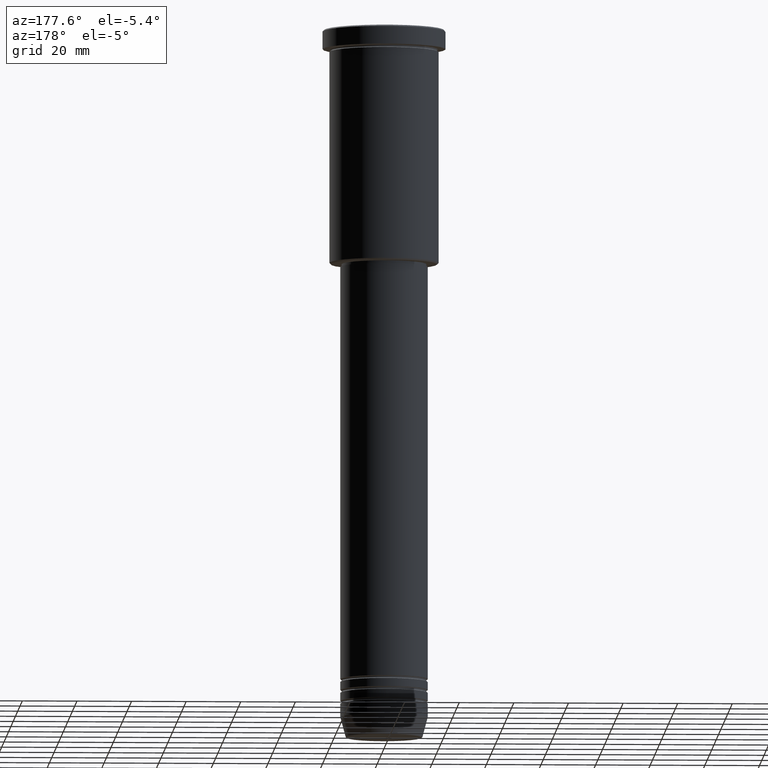
[diagram: clean part render]
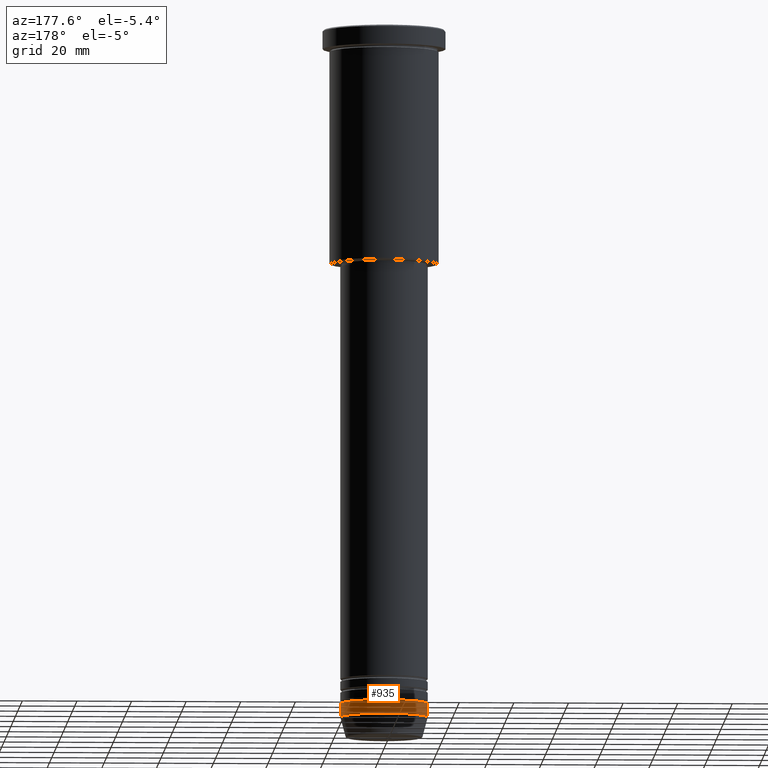
[diagram: same view with one face highlighted and labeled with its STEP entity id]
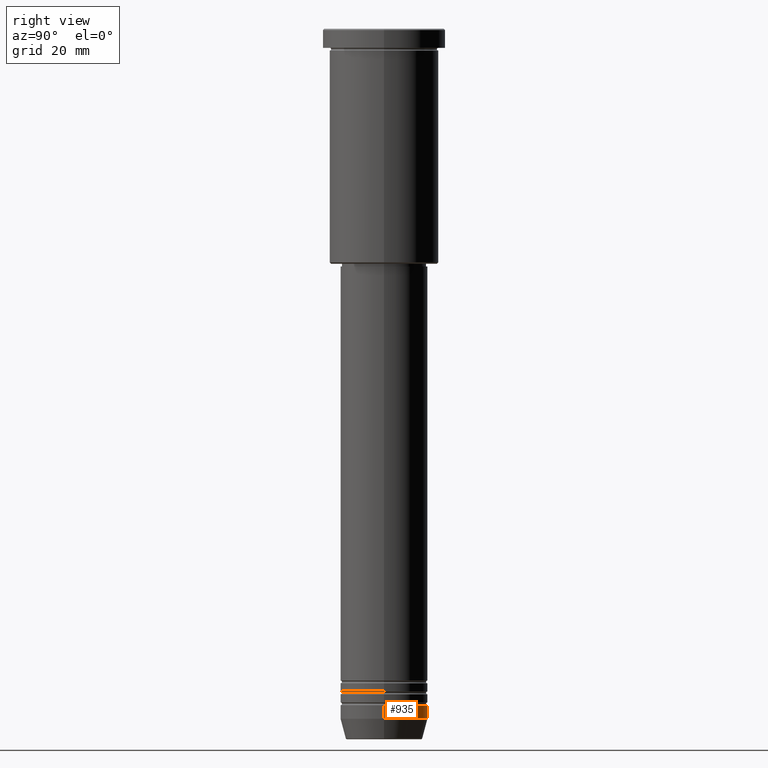
[diagram: same view with one face highlighted and labeled with its STEP entity id]
A machine part, auxiliary view. The second image highlights one B-rep face of the part: STEP entity #935.
A second angle (right view) of the same face is appended — the face is thin or edge-on in the first view.
In plain terms, the highlighted cylindrical surface (partial cylindrical patch) has radius 16 mm, axis along (-0, -0, 1).
Its self-contained STEP definition (entity closure, byte-faithful):
#8 = EDGE_CURVE ( 'NONE', #1112, #890, #61, .T. ) ;
#36 = DIRECTION ( 'NONE',  ( -0.000000000000000000, -0.000000000000000000, 1.000000000000000000 ) ) ;
#61 = LINE ( 'NONE', #779, #893 ) ;
#68 = CIRCLE ( 'NONE', #817, 16.00000000000000000 ) ;
#71 = AXIS2_PLACEMENT_3D ( 'NONE', #388, #936, #116 ) ;
#116 = DIRECTION ( 'NONE',  ( 1.000000000000000000, 0.000000000000000000, 0.000000000000000000 ) ) ;
#153 = CARTESIAN_POINT ( 'NONE',  ( 16.00000000000000000, 0.000000000000000000, -252.5000000000000000 ) ) ;
#241 = VECTOR ( 'NONE', #423, 1000.000000000000000 ) ;
#246 = EDGE_CURVE ( 'NONE', #1150, #806, #494, .T. ) ;
#250 = DIRECTION ( 'NONE',  ( 1.000000000000000000, 0.000000000000000000, 0.000000000000000000 ) ) ;
#334 = CARTESIAN_POINT ( 'NONE',  ( -16.00000000000000000, 1.959434878635765131E-15, 0.000000000000000000 ) ) ;
#388 = CARTESIAN_POINT ( 'NONE',  ( 0.000000000000000000, 0.000000000000000000, 0.000000000000000000 ) ) ;
#389 = EDGE_CURVE ( 'NONE', #1112, #1150, #749, .T. ) ;
#422 = ORIENTED_EDGE ( 'NONE', *, *, #246, .T. ) ;
#423 = DIRECTION ( 'NONE',  ( -0.000000000000000000, -0.000000000000000000, 1.000000000000000000 ) ) ;
#424 = CARTESIAN_POINT ( 'NONE',  ( -16.00000000000000000, 1.959434878635765131E-15, -252.5000000000000000 ) ) ;
#431 = DIRECTION ( 'NONE',  ( 1.000000000000000000, 0.000000000000000000, 0.000000000000000000 ) ) ;
#457 = CARTESIAN_POINT ( 'NONE',  ( -16.00000000000000000, 1.959434878635765131E-15, -247.5000000000000000 ) ) ;
#488 = CYLINDRICAL_SURFACE ( 'NONE', #71, 16.00000000000000000 ) ;
#494 = LINE ( 'NONE', #334, #241 ) ;
#516 = EDGE_CURVE ( 'NONE', #890, #806, #68, .T. ) ;
#598 = FACE_OUTER_BOUND ( 'NONE', #814, .T. ) ;
#744 = ORIENTED_EDGE ( 'NONE', *, *, #389, .T. ) ;
#749 = CIRCLE ( 'NONE', #966, 16.00000000000000000 ) ;
#779 = CARTESIAN_POINT ( 'NONE',  ( 16.00000000000000000, 0.000000000000000000, 0.000000000000000000 ) ) ;
#788 = ORIENTED_EDGE ( 'NONE', *, *, #8, .F. ) ;
#793 = ORIENTED_EDGE ( 'NONE', *, *, #516, .F. ) ;
#806 = VERTEX_POINT ( 'NONE', #457 ) ;
#814 = EDGE_LOOP ( 'NONE', ( #744, #422, #793, #788 ) ) ;
#817 = AXIS2_PLACEMENT_3D ( 'NONE', #1151, #965, #250 ) ;
#890 = VERTEX_POINT ( 'NONE', #1002 ) ;
#893 = VECTOR ( 'NONE', #36, 1000.000000000000000 ) ;
#935 = ADVANCED_FACE ( 'NONE', ( #598 ), #488, .T. ) ;
#936 = DIRECTION ( 'NONE',  ( -0.000000000000000000, -0.000000000000000000, 1.000000000000000000 ) ) ;
#965 = DIRECTION ( 'NONE',  ( -0.000000000000000000, -0.000000000000000000, 1.000000000000000000 ) ) ;
#966 = AXIS2_PLACEMENT_3D ( 'NONE', #988, #1169, #431 ) ;
#988 = CARTESIAN_POINT ( 'NONE',  ( 0.000000000000000000, 0.000000000000000000, -252.5000000000000000 ) ) ;
#1002 = CARTESIAN_POINT ( 'NONE',  ( 16.00000000000000000, 0.000000000000000000, -247.5000000000000000 ) ) ;
#1112 = VERTEX_POINT ( 'NONE', #153 ) ;
#1150 = VERTEX_POINT ( 'NONE', #424 ) ;
#1151 = CARTESIAN_POINT ( 'NONE',  ( 0.000000000000000000, 0.000000000000000000, -247.5000000000000000 ) ) ;
#1169 = DIRECTION ( 'NONE',  ( -0.000000000000000000, -0.000000000000000000, 1.000000000000000000 ) ) ;